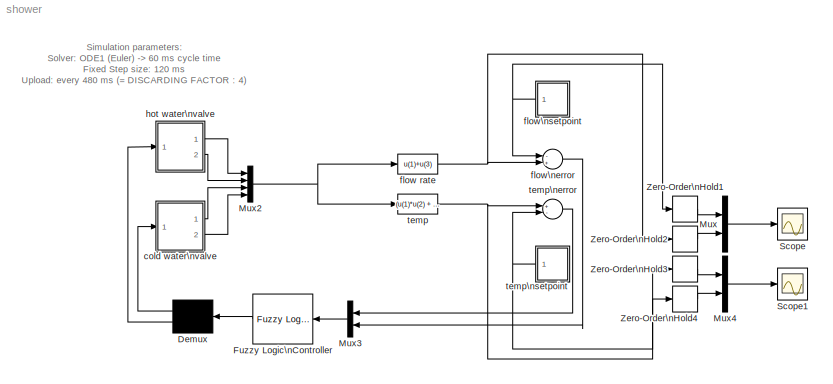
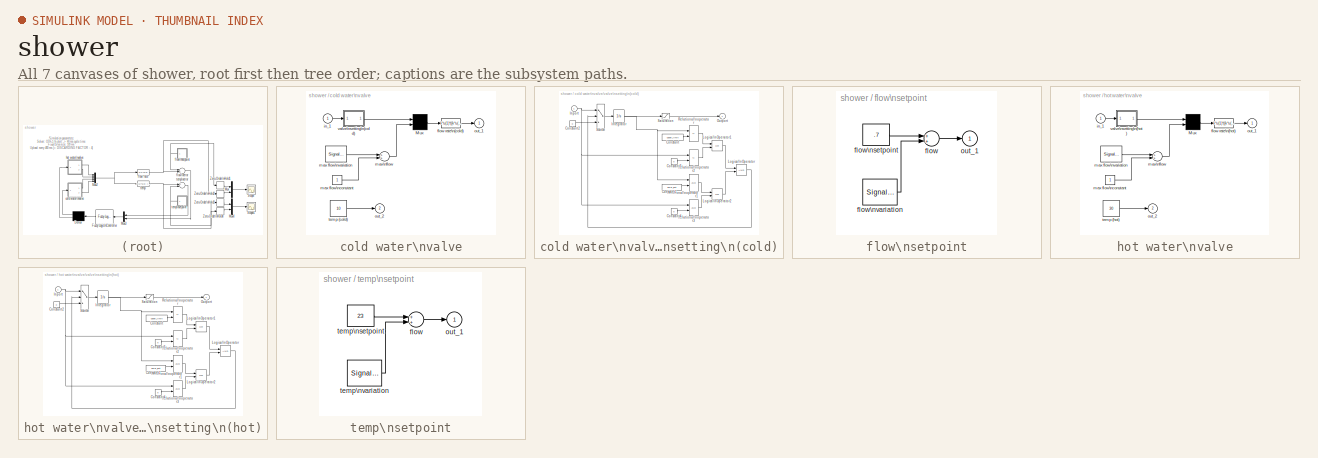
[diagram: thumbnail index - all 7 canvases of the model, root first then tree order]
MODEL shower
KIND model
CONFIG PreLoadFcn = fisMatrix=readfis('shower'); k=1;
BLOCK [Demux] Demux
  Outputs = 2
  Ports = [1, 2]
  SID = 1
BLOCK [Reference] Fuzzy Logic\nController  REF=fuzblock/Fuzzy Logic \nController  (lib defined in mdl_858b3b3e7478)
  FunctionWithSeparateData = off
  Ports = [1, 1]
  RTWMemSecDataConstants = Inherit from model
  RTWMemSecDataInternal = Inherit from model
  RTWMemSecDataParameters = Inherit from model
  RTWMemSecFuncExecute = Inherit from model
  RTWMemSecFuncInitTerm = Inherit from model
  SID = 2
  ShowPortLabels = FromPortIcon
  SourceBlock = fuzblock/Fuzzy Logic \nController
  SourceProductBaseCode = FL
  SourceProductName = Fuzzy Logic Toolbox
  SourceType = FIS
  SystemSampleTime = -1
  fis = fisMatrix
BLOCK [Mux] Mux
  DisplayOption = bar
  Inputs = 2
  Ports = [2, 1]
  SID = 3
BLOCK [Mux] Mux2
  DisplayOption = bar
  Ports = [4, 1]
  SID = 4
BLOCK [Mux] Mux3
  DisplayOption = bar
  Inputs = 2
  Ports = [2, 1]
  SID = 5
BLOCK [Mux] Mux4
  DisplayOption = bar
  Inputs = 2
  Ports = [2, 1]
  SID = 6
BLOCK [Scope] Scope
  Floating = off
  NumInputPorts = 1
  Ports = [1]
  SID = 7
  ScopeSpecificationString = C++SS(StrPVP('Location','[626, 159, 993, 394]'),StrPVP('Open','off'),MxPVP('AxesTitles',54,'struct(''axes1'',''%<SignalLabel>'')'),StrPVP('TimeRange','25'),StrPVP('YMin','0'),StrPVP('YMax','1'),StrPVP('DataFormat','StructureWithTime'),StrPVP('BlockParamSampleTime','0'),StrPVP('LimitDataPoints','on'),StrPVP('Decimation','1'),StrPVP('BlockParamSampleInput','off'))
BLOCK [Scope] Scope1
  Floating = off
  NumInputPorts = 1
  Ports = [1]
  SID = 8
  ScopeSpecificationString = C++SS(StrPVP('Location','[626, 451, 993, 671]'),StrPVP('Open','off'),MxPVP('AxesTitles',54,'struct(''axes1'',''%<SignalLabel>'')'),StrPVP('TimeRange','25'),StrPVP('YMin','15'),StrPVP('YMax','30'),StrPVP('SaveName','ScopeData1'),StrPVP('DataFormat','StructureWithTime'),StrPVP('BlockParamSampleTime','0'),StrPVP('LimitDataPoints','on'),StrPVP('Decimation','1'),StrPVP('BlockParamSampleInput','off'))
BLOCK [ZeroOrderHold] Zero-Order\nHold1
  SID = 9
  SampleTime = 0.48
BLOCK [ZeroOrderHold] Zero-Order\nHold2
  SID = 10
  SampleTime = 0.48
BLOCK [ZeroOrderHold] Zero-Order\nHold3
  SID = 11
  SampleTime = 0.48
BLOCK [ZeroOrderHold] Zero-Order\nHold4
  SID = 12
  SampleTime = 0.48
BLOCK [SubSystem] cold water\nvalve
  Ports = [1, 2]
  RequestExecContextInheritance = off
  SID = 13
  ShowPortLabels = none
BLOCK [Mux] cold water\nvalve/Mux
  Inputs = 2
  Ports = [2, 1]
  SID = 15
BLOCK [Fcn] cold water\nvalve/flow rate\n(cold)
  Expr = k*u(1)*((k*u(1))<=u(2)) + u(2)*((k*u(1))>u(2))
  SID = 16
BLOCK [Inport] cold water\nvalve/in_1
  IconDisplay = Port number
  SID = 14
BLOCK [Constant] cold water\nvalve/max flow\nconstant
  SID = 18
BLOCK [SignalGenerator] cold water\nvalve/max flow\nvariation
  Amplitude = 0.000000
  Frequency = 0.101325
  Ports = [0, 1]
  SID = 19
  Units = rad/sec
BLOCK [Sum] cold water\nvalve/max\nflow
  Ports = [2, 1]
  SID = 17
BLOCK [Outport] cold water\nvalve/out_1
  IconDisplay = Port number
  InitialOutput = 0
  SID = 39
BLOCK [Outport] cold water\nvalve/out_2
  IconDisplay = Port number
  InitialOutput = 0
  Port = 2
  SID = 40
BLOCK [Constant] cold water\nvalve/temp (cold)
  SID = 20
  Value = 10
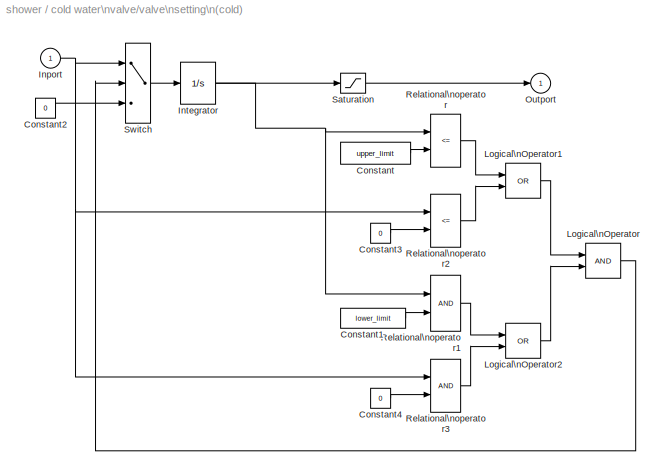
BLOCK [SubSystem] cold water\nvalve/valve\nsetting\n(cold)
  Ports = [1, 1]
  RequestExecContextInheritance = off
  SID = 21
  ShowPortLabels = none
BLOCK [Constant] cold water\nvalve/valve\nsetting\n(cold)/Constant
  SID = 23
  Value = upper_limit
BLOCK [Constant] cold water\nvalve/valve\nsetting\n(cold)/Constant1
  SID = 24
  Value = lower_limit
BLOCK [Constant] cold water\nvalve/valve\nsetting\n(cold)/Constant2
  SID = 25
  Value = 0
BLOCK [Constant] cold water\nvalve/valve\nsetting\n(cold)/Constant3
  SID = 26
  Value = 0
BLOCK [Constant] cold water\nvalve/valve\nsetting\n(cold)/Constant4
  SID = 27
  Value = 0
BLOCK [Inport] cold water\nvalve/valve\nsetting\n(cold)/Inport
  IconDisplay = Port number
  SID = 22
BLOCK [Integrator] cold water\nvalve/valve\nsetting\n(cold)/Integrator
  InitialCondition = X0
  Ports = [1, 1]
  SID = 28
BLOCK [Logic] cold water\nvalve/valve\nsetting\n(cold)/Logical\nOperator
  Ports = [2, 1]
  SID = 29
BLOCK [Logic] cold water\nvalve/valve\nsetting\n(cold)/Logical\nOperator1
  Operator = OR
  Ports = [2, 1]
  SID = 30
BLOCK [Logic] cold water\nvalve/valve\nsetting\n(cold)/Logical\nOperator2
  Operator = OR
  Ports = [2, 1]
  SID = 31
BLOCK [Outport] cold water\nvalve/valve\nsetting\n(cold)/Outport
  IconDisplay = Port number
  InitialOutput = 0
  SID = 38
BLOCK [RelationalOperator] cold water\nvalve/valve\nsetting\n(cold)/Relational\noperator
  Operator = <=
  Ports = [2, 1]
  SID = 32
BLOCK [RelationalOperator] cold water\nvalve/valve\nsetting\n(cold)/Relational\noperator1
  Ports = [2, 1]
  SID = 33
BLOCK [RelationalOperator] cold water\nvalve/valve\nsetting\n(cold)/Relational\noperator2
  Operator = <=
  Ports = [2, 1]
  SID = 34
BLOCK [RelationalOperator] cold water\nvalve/valve\nsetting\n(cold)/Relational\noperator3
  Ports = [2, 1]
  SID = 35
BLOCK [Saturate] cold water\nvalve/valve\nsetting\n(cold)/Saturation
  InputPortMap = u0
  LowerLimit = lower_limit
  Ports = [1, 1]
  SID = 36
  UpperLimit = upper_limit
BLOCK [Switch] cold water\nvalve/valve\nsetting\n(cold)/Switch
  SID = 37
  Threshold = 0.5
BLOCK [Fcn] flow rate
  Expr = u(1)+u(3)
  SID = 47
BLOCK [Sum] flow\nerror
  Inputs = -+
  Ports = [2, 1]
  SID = 41
BLOCK [SubSystem] flow\nsetpoint
  Ports = [0, 1]
  RequestExecContextInheritance = off
  SID = 42
  ShowPortLabels = none
BLOCK [Sum] flow\nsetpoint/flow
  Ports = [2, 1]
  SID = 43
BLOCK [Constant] flow\nsetpoint/flow\nsetpoint
  SID = 44
  Value = .7
BLOCK [SignalGenerator] flow\nsetpoint/flow\nvariation
  Amplitude = 0.200000
  Frequency = 0.300000
  Ports = [0, 1]
  SID = 45
  Units = rad/sec
  WaveForm = square
BLOCK [Outport] flow\nsetpoint/out_1
  IconDisplay = Port number
  InitialOutput = 0
  SID = 46
BLOCK [SubSystem] hot water\nvalve
  Ports = [1, 2]
  RequestExecContextInheritance = off
  SID = 48
  ShowPortLabels = none
BLOCK [Mux] hot water\nvalve/Mux
  Inputs = 2
  Ports = [2, 1]
  SID = 50
BLOCK [Fcn] hot water\nvalve/flow rate\n(hot)
  Expr = k*u(1)*((k*u(1))<=u(2)) + u(2)*((k*u(1))>u(2))
  SID = 51
BLOCK [Inport] hot water\nvalve/in_1
  IconDisplay = Port number
  SID = 49
BLOCK [Constant] hot water\nvalve/max flow\nconstant
  SID = 53
BLOCK [SignalGenerator] hot water\nvalve/max flow\nvariation
  Amplitude = 0.000000
  Frequency = 0.300000
  Ports = [0, 1]
  SID = 54
  Units = rad/sec
BLOCK [Sum] hot water\nvalve/max\nflow
  Ports = [2, 1]
  SID = 52
BLOCK [Outport] hot water\nvalve/out_1
  IconDisplay = Port number
  InitialOutput = 0
  SID = 74
BLOCK [Outport] hot water\nvalve/out_2
  IconDisplay = Port number
  InitialOutput = 0
  Port = 2
  SID = 75
BLOCK [Constant] hot water\nvalve/temp (hot)
  SID = 55
  Value = 30
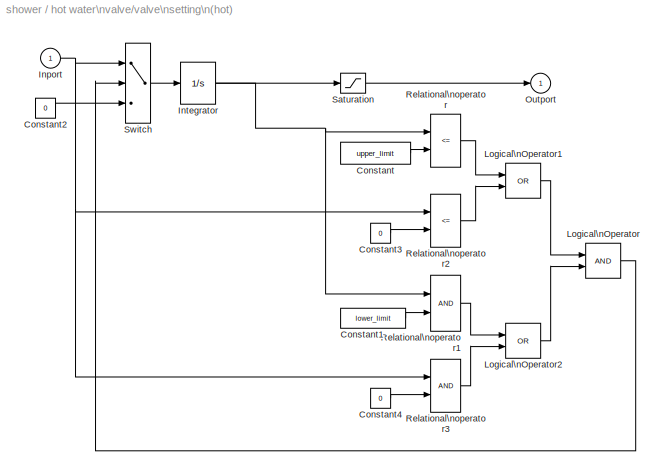
BLOCK [SubSystem] hot water\nvalve/valve\nsetting\n(hot)
  Ports = [1, 1]
  RequestExecContextInheritance = off
  SID = 56
  ShowPortLabels = none
BLOCK [Constant] hot water\nvalve/valve\nsetting\n(hot)/Constant
  SID = 58
  Value = upper_limit
BLOCK [Constant] hot water\nvalve/valve\nsetting\n(hot)/Constant1
  SID = 59
  Value = lower_limit
BLOCK [Constant] hot water\nvalve/valve\nsetting\n(hot)/Constant2
  SID = 60
  Value = 0
BLOCK [Constant] hot water\nvalve/valve\nsetting\n(hot)/Constant3
  SID = 61
  Value = 0
BLOCK [Constant] hot water\nvalve/valve\nsetting\n(hot)/Constant4
  SID = 62
  Value = 0
BLOCK [Inport] hot water\nvalve/valve\nsetting\n(hot)/Inport
  IconDisplay = Port number
  SID = 57
BLOCK [Integrator] hot water\nvalve/valve\nsetting\n(hot)/Integrator
  InitialCondition = X0
  Ports = [1, 1]
  SID = 63
BLOCK [Logic] hot water\nvalve/valve\nsetting\n(hot)/Logical\nOperator
  Ports = [2, 1]
  SID = 64
BLOCK [Logic] hot water\nvalve/valve\nsetting\n(hot)/Logical\nOperator1
  Operator = OR
  Ports = [2, 1]
  SID = 65
BLOCK [Logic] hot water\nvalve/valve\nsetting\n(hot)/Logical\nOperator2
  Operator = OR
  Ports = [2, 1]
  SID = 66
BLOCK [Outport] hot water\nvalve/valve\nsetting\n(hot)/Outport
  IconDisplay = Port number
  InitialOutput = 0
  SID = 73
BLOCK [RelationalOperator] hot water\nvalve/valve\nsetting\n(hot)/Relational\noperator
  Operator = <=
  Ports = [2, 1]
  SID = 67
BLOCK [RelationalOperator] hot water\nvalve/valve\nsetting\n(hot)/Relational\noperator1
  Ports = [2, 1]
  SID = 68
BLOCK [RelationalOperator] hot water\nvalve/valve\nsetting\n(hot)/Relational\noperator2
  Operator = <=
  Ports = [2, 1]
  SID = 69
BLOCK [RelationalOperator] hot water\nvalve/valve\nsetting\n(hot)/Relational\noperator3
  Ports = [2, 1]
  SID = 70
BLOCK [Saturate] hot water\nvalve/valve\nsetting\n(hot)/Saturation
  InputPortMap = u0
  LowerLimit = lower_limit
  Ports = [1, 1]
  SID = 71
  UpperLimit = upper_limit
BLOCK [Switch] hot water\nvalve/valve\nsetting\n(hot)/Switch
  SID = 72
  Threshold = 0.5
BLOCK [Fcn] temp
  Expr = (u(1)*u(2) + u(3)*u(4))/(u(1)+u(3))
  SID = 76
BLOCK [Sum] temp\nerror
  Inputs = +-
  Ports = [2, 1]
  SID = 77
BLOCK [SubSystem] temp\nsetpoint
  Ports = [0, 1]
  RequestExecContextInheritance = off
  SID = 78
  ShowPortLabels = none
BLOCK [Sum] temp\nsetpoint/flow
  Ports = [2, 1]
  SID = 79
BLOCK [Outport] temp\nsetpoint/out_1
  IconDisplay = Port number
  InitialOutput = 0
  SID = 82
BLOCK [Constant] temp\nsetpoint/temp\nsetpoint
  SID = 80
  Value = 23
BLOCK [SignalGenerator] temp\nsetpoint/temp\nvariation
  Amplitude = 4.000000
  Frequency = 0.214320
  Ports = [0, 1]
  SID = 81
  Units = rad/sec
  WaveForm = square
ANNOTATION (root): Simulation parameters:\nSolver: ODE1 (Euler) -> 60 ms cycle time\nFixed Step size: 120 ms\nUpload: every 480 ms (= DISCARDING FACTOR : 4)
LINE Demux:1 -> cold water\nvalve:1
LINE Demux:2 -> hot water\nvalve:1
LINE Fuzzy Logic\nController:1 -> Demux:1
NET Mux2:1 -> flow rate:1, temp:1
LINE Mux3:1 -> Fuzzy Logic\nController:1
LINE Mux4:1 -> Scope1:1
LINE Mux:1 -> Scope:1
LINE Zero-Order\nHold1:1 -> Mux:1
LINE Zero-Order\nHold2:1 -> Mux:2
LINE Zero-Order\nHold3:1 -> Mux4:1
LINE Zero-Order\nHold4:1 -> Mux4:2
LINE cold water\nvalve/Mux:1 -> cold water\nvalve/flow rate\n(cold):1
LINE cold water\nvalve/flow rate\n(cold):1 -> cold water\nvalve/out_1:1
LINE cold water\nvalve/in_1:1 -> cold water\nvalve/valve\nsetting\n(cold):1
LINE cold water\nvalve/max flow\nconstant:1 -> cold water\nvalve/max\nflow:2
LINE cold water\nvalve/max flow\nvariation:1 -> cold water\nvalve/max\nflow:1
LINE cold water\nvalve/max\nflow:1 -> cold water\nvalve/Mux:2
LINE cold water\nvalve/temp (cold):1 -> cold water\nvalve/out_2:1
LINE cold water\nvalve/valve\nsetting\n(cold)/Constant1:1 -> cold water\nvalve/valve\nsetting\n(cold)/Relational\noperator1:2
LINE cold water\nvalve/valve\nsetting\n(cold)/Constant2:1 -> cold water\nvalve/valve\nsetting\n(cold)/Switch:3
LINE cold water\nvalve/valve\nsetting\n(cold)/Constant3:1 -> cold water\nvalve/valve\nsetting\n(cold)/Relational\noperator2:2
LINE cold water\nvalve/valve\nsetting\n(cold)/Constant4:1 -> cold water\nvalve/valve\nsetting\n(cold)/Relational\noperator3:2
LINE cold water\nvalve/valve\nsetting\n(cold)/Constant:1 -> cold water\nvalve/valve\nsetting\n(cold)/Relational\noperator:2
NET cold water\nvalve/valve\nsetting\n(cold)/Inport:1 -> cold water\nvalve/valve\nsetting\n(cold)/Relational\noperator2:1, cold water\nvalve/valve\nsetting\n(cold)/Relational\noperator3:1, cold water\nvalve/valve\nsetting\n(cold)/Switch:1
NET cold water\nvalve/valve\nsetting\n(cold)/Integrator:1 -> cold water\nvalve/valve\nsetting\n(cold)/Relational\noperator1:1, cold water\nvalve/valve\nsetting\n(cold)/Relational\noperator:1, cold water\nvalve/valve\nsetting\n(cold)/Saturation:1
LINE cold water\nvalve/valve\nsetting\n(cold)/Logical\nOperator1:1 -> cold water\nvalve/valve\nsetting\n(cold)/Logical\nOperator:1
LINE cold water\nvalve/valve\nsetting\n(cold)/Logical\nOperator2:1 -> cold water\nvalve/valve\nsetting\n(cold)/Logical\nOperator:2
LINE cold water\nvalve/valve\nsetting\n(cold)/Logical\nOperator:1 -> cold water\nvalve/valve\nsetting\n(cold)/Switch:2
LINE cold water\nvalve/valve\nsetting\n(cold)/Relational\noperator1:1 -> cold water\nvalve/valve\nsetting\n(cold)/Logical\nOperator2:1
LINE cold water\nvalve/valve\nsetting\n(cold)/Relational\noperator2:1 -> cold water\nvalve/valve\nsetting\n(cold)/Logical\nOperator1:2
LINE cold water\nvalve/valve\nsetting\n(cold)/Relational\noperator3:1 -> cold water\nvalve/valve\nsetting\n(cold)/Logical\nOperator2:2
LINE cold water\nvalve/valve\nsetting\n(cold)/Relational\noperator:1 -> cold water\nvalve/valve\nsetting\n(cold)/Logical\nOperator1:1
LINE cold water\nvalve/valve\nsetting\n(cold)/Saturation:1 -> cold water\nvalve/valve\nsetting\n(cold)/Outport:1
LINE cold water\nvalve/valve\nsetting\n(cold)/Switch:1 -> cold water\nvalve/valve\nsetting\n(cold)/Integrator:1
LINE cold water\nvalve/valve\nsetting\n(cold):1 -> cold water\nvalve/Mux:1
LINE cold water\nvalve:1 -> Mux2:3
LINE cold water\nvalve:2 -> Mux2:4
NET flow rate:1 -> Zero-Order\nHold2:1, flow\nerror:2
LINE flow\nerror:1 -> Mux3:2
LINE flow\nsetpoint/flow:1 -> flow\nsetpoint/out_1:1
LINE flow\nsetpoint/flow\nsetpoint:1 -> flow\nsetpoint/flow:1
LINE flow\nsetpoint/flow\nvariation:1 -> flow\nsetpoint/flow:2
NET flow\nsetpoint:1 -> Zero-Order\nHold1:1, flow\nerror:1
LINE hot water\nvalve/Mux:1 -> hot water\nvalve/flow rate\n(hot):1
LINE hot water\nvalve/flow rate\n(hot):1 -> hot water\nvalve/out_1:1
LINE hot water\nvalve/in_1:1 -> hot water\nvalve/valve\nsetting\n(hot):1
LINE hot water\nvalve/max flow\nconstant:1 -> hot water\nvalve/max\nflow:2
LINE hot water\nvalve/max flow\nvariation:1 -> hot water\nvalve/max\nflow:1
LINE hot water\nvalve/max\nflow:1 -> hot water\nvalve/Mux:2
LINE hot water\nvalve/temp (hot):1 -> hot water\nvalve/out_2:1
LINE hot water\nvalve/valve\nsetting\n(hot)/Constant1:1 -> hot water\nvalve/valve\nsetting\n(hot)/Relational\noperator1:2
LINE hot water\nvalve/valve\nsetting\n(hot)/Constant2:1 -> hot water\nvalve/valve\nsetting\n(hot)/Switch:3
LINE hot water\nvalve/valve\nsetting\n(hot)/Constant3:1 -> hot water\nvalve/valve\nsetting\n(hot)/Relational\noperator2:2
LINE hot water\nvalve/valve\nsetting\n(hot)/Constant4:1 -> hot water\nvalve/valve\nsetting\n(hot)/Relational\noperator3:2
LINE hot water\nvalve/valve\nsetting\n(hot)/Constant:1 -> hot water\nvalve/valve\nsetting\n(hot)/Relational\noperator:2
NET hot water\nvalve/valve\nsetting\n(hot)/Inport:1 -> hot water\nvalve/valve\nsetting\n(hot)/Relational\noperator2:1, hot water\nvalve/valve\nsetting\n(hot)/Relational\noperator3:1, hot water\nvalve/valve\nsetting\n(hot)/Switch:1
NET hot water\nvalve/valve\nsetting\n(hot)/Integrator:1 -> hot water\nvalve/valve\nsetting\n(hot)/Relational\noperator1:1, hot water\nvalve/valve\nsetting\n(hot)/Relational\noperator:1, hot water\nvalve/valve\nsetting\n(hot)/Saturation:1
LINE hot water\nvalve/valve\nsetting\n(hot)/Logical\nOperator1:1 -> hot water\nvalve/valve\nsetting\n(hot)/Logical\nOperator:1
LINE hot water\nvalve/valve\nsetting\n(hot)/Logical\nOperator2:1 -> hot water\nvalve/valve\nsetting\n(hot)/Logical\nOperator:2
LINE hot water\nvalve/valve\nsetting\n(hot)/Logical\nOperator:1 -> hot water\nvalve/valve\nsetting\n(hot)/Switch:2
LINE hot water\nvalve/valve\nsetting\n(hot)/Relational\noperator1:1 -> hot water\nvalve/valve\nsetting\n(hot)/Logical\nOperator2:1
LINE hot water\nvalve/valve\nsetting\n(hot)/Relational\noperator2:1 -> hot water\nvalve/valve\nsetting\n(hot)/Logical\nOperator1:2
LINE hot water\nvalve/valve\nsetting\n(hot)/Relational\noperator3:1 -> hot water\nvalve/valve\nsetting\n(hot)/Logical\nOperator2:2
LINE hot water\nvalve/valve\nsetting\n(hot)/Relational\noperator:1 -> hot water\nvalve/valve\nsetting\n(hot)/Logical\nOperator1:1
LINE hot water\nvalve/valve\nsetting\n(hot)/Saturation:1 -> hot water\nvalve/valve\nsetting\n(hot)/Outport:1
LINE hot water\nvalve/valve\nsetting\n(hot)/Switch:1 -> hot water\nvalve/valve\nsetting\n(hot)/Integrator:1
LINE hot water\nvalve/valve\nsetting\n(hot):1 -> hot water\nvalve/Mux:1
LINE hot water\nvalve:1 -> Mux2:1
LINE hot water\nvalve:2 -> Mux2:2
NET temp:1 -> Zero-Order\nHold4:1, temp\nerror:1
LINE temp\nerror:1 -> Mux3:1
LINE temp\nsetpoint/flow:1 -> temp\nsetpoint/out_1:1
LINE temp\nsetpoint/temp\nsetpoint:1 -> temp\nsetpoint/flow:1
LINE temp\nsetpoint/temp\nvariation:1 -> temp\nsetpoint/flow:2
NET temp\nsetpoint:1 -> Zero-Order\nHold3:1, temp\nerror:2
note: NET lines group one-source signal fan-out (src -> all destinations, sorted); 1:1 wires keep LINE
